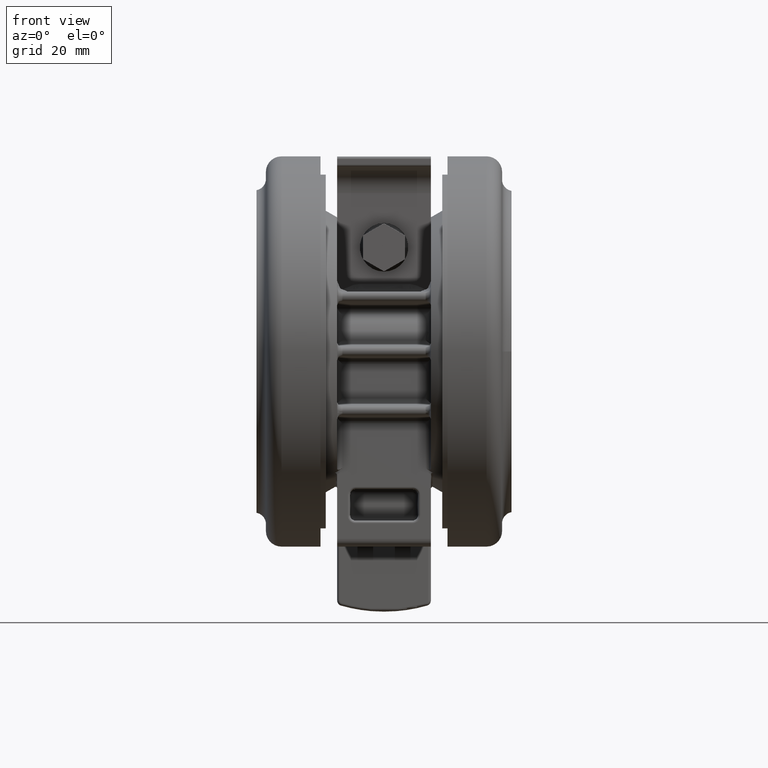
[diagram: clean part render]
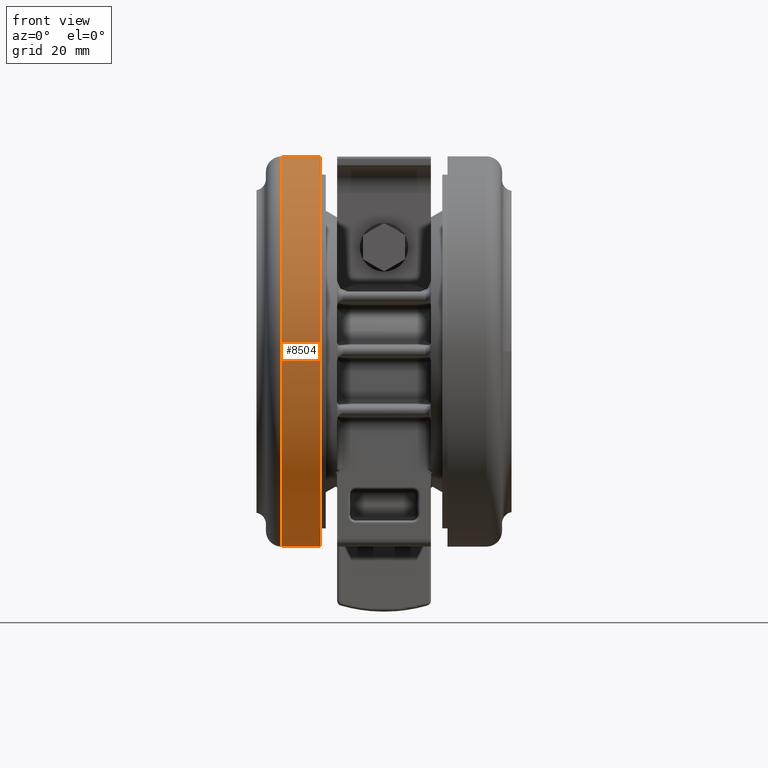
[diagram: same view with one face highlighted and labeled with its STEP entity id]
A machine part, front view. The second image highlights one B-rep face of the part: STEP entity #8504.
In plain terms, the highlighted cylindrical surface (partial cylindrical patch) has radius 37.5 mm, axis along (-1, 0, 0).
Its self-contained STEP definition (entity closure, byte-faithful):
#997 = DIRECTION ( 'NONE',  ( 2.997602166487919900E-015, -1.000000000000000000, 0.0000000000000000000 ) ) ;
#2088 = DIRECTION ( 'NONE',  ( 0.0000000000000000000, 0.0000000000000000000, 1.000000000000000000 ) ) ;
#2916 = VERTEX_POINT ( 'NONE', #36767 ) ;
#4234 = VERTEX_POINT ( 'NONE', #41445 ) ;
#5243 = CARTESIAN_POINT ( 'NONE',  ( 1.072059108153665800E-013, -37.49999999999995000, -206.8894685039371400 ) ) ;
#5720 = ORIENTED_EDGE ( 'NONE', *, *, #10060, .T. ) ;
#7645 = CARTESIAN_POINT ( 'NONE',  ( -5.204170427930421300E-015, 4.857225732735059900E-014, -36.70000000000014500 ) ) ;
#8504 = ADVANCED_FACE ( 'NONE', ( #23015 ), #39390, .T. ) ;
#9428 = ORIENTED_EDGE ( 'NONE', *, *, #25083, .T. ) ;
#9802 = CARTESIAN_POINT ( 'NONE',  ( -1.176142516712274500E-013, 37.50000000000005000, -44.20000000000014500 ) ) ;
#10060 = EDGE_CURVE ( 'NONE', #4234, #32381, #36877, .T. ) ;
#10516 = CIRCLE ( 'NONE', #17166, 37.50000000000000000 ) ;
#11427 = DIRECTION ( 'NONE',  ( 2.997602166487919900E-015, -1.000000000000000000, 0.0000000000000000000 ) ) ;
#15289 = EDGE_CURVE ( 'NONE', #33808, #32381, #31788, .T. ) ;
#15899 = DIRECTION ( 'NONE',  ( 0.0000000000000000000, -0.0000000000000000000, -1.000000000000000000 ) ) ;
#16282 = EDGE_CURVE ( 'NONE', #33808, #2916, #10516, .T. ) ;
#17166 = AXIS2_PLACEMENT_3D ( 'NONE', #7645, #33867, #11427 ) ;
#17232 = AXIS2_PLACEMENT_3D ( 'NONE', #24514, #2088, #28284 ) ;
#19105 = LINE ( 'NONE', #5243, #39042 ) ;
#23015 = FACE_OUTER_BOUND ( 'NONE', #24083, .T. ) ;
#23437 = CARTESIAN_POINT ( 'NONE',  ( -5.204170427930421300E-015, 4.857225732735059900E-014, -206.8894685039371400 ) ) ;
#24083 = EDGE_LOOP ( 'NONE', ( #27359, #24140, #9428, #5720 ) ) ;
#24140 = ORIENTED_EDGE ( 'NONE', *, *, #16282, .T. ) ;
#24514 = CARTESIAN_POINT ( 'NONE',  ( -5.204170427930421300E-015, 4.857225732735059900E-014, -44.20000000000014500 ) ) ;
#25083 = EDGE_CURVE ( 'NONE', #2916, #4234, #19105, .T. ) ;
#26303 = CARTESIAN_POINT ( 'NONE',  ( -1.222066771680300000E-013, 37.50000000000005000, -206.8894685039371400 ) ) ;
#27359 = ORIENTED_EDGE ( 'NONE', *, *, #15289, .F. ) ;
#28284 = DIRECTION ( 'NONE',  ( -2.997602166487919900E-015, 1.000000000000000000, 0.0000000000000000000 ) ) ;
#30581 = VECTOR ( 'NONE', #33855, 1000.000000000000000 ) ;
#31471 = DIRECTION ( 'NONE',  ( 0.0000000000000000000, -0.0000000000000000000, -1.000000000000000000 ) ) ;
#31788 = LINE ( 'NONE', #26303, #30581 ) ;
#32381 = VERTEX_POINT ( 'NONE', #9802 ) ;
#33808 = VERTEX_POINT ( 'NONE', #43849 ) ;
#33855 = DIRECTION ( 'NONE',  ( 0.0000000000000000000, -0.0000000000000000000, -1.000000000000000000 ) ) ;
#33867 = DIRECTION ( 'NONE',  ( 0.0000000000000000000, -0.0000000000000000000, -1.000000000000000000 ) ) ;
#36767 = CARTESIAN_POINT ( 'NONE',  ( 1.072059108153665800E-013, -37.49999999999995000, -36.70000000000014500 ) ) ;
#36877 = CIRCLE ( 'NONE', #17232, 37.50000000000000000 ) ;
#39042 = VECTOR ( 'NONE', #31471, 1000.000000000000000 ) ;
#39390 = CYLINDRICAL_SURFACE ( 'NONE', #46318, 37.50000000000000000 ) ;
#41445 = CARTESIAN_POINT ( 'NONE',  ( 1.026134853185640200E-013, -37.49999999999995000, -44.20000000000014500 ) ) ;
#43849 = CARTESIAN_POINT ( 'NONE',  ( -1.222066771680300000E-013, 37.50000000000005000, -36.70000000000014500 ) ) ;
#46318 = AXIS2_PLACEMENT_3D ( 'NONE', #23437, #15899, #997 ) ;